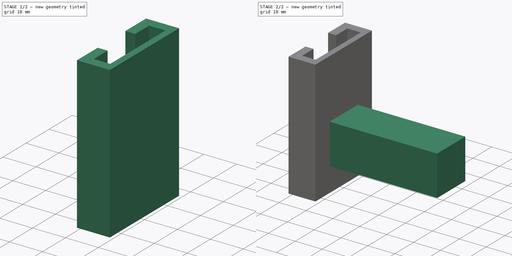
[diagram: build sequence overview — one tinted view per stage of 2, left to right]
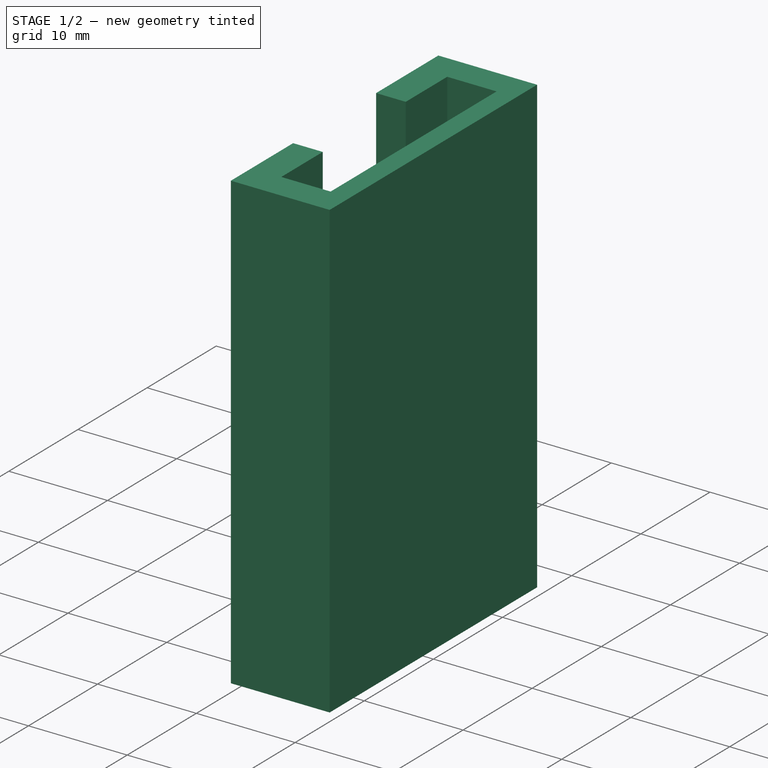
[diagram: stage 1 of 2 — iso view after this stage's code; geometry added in this stage tinted green]
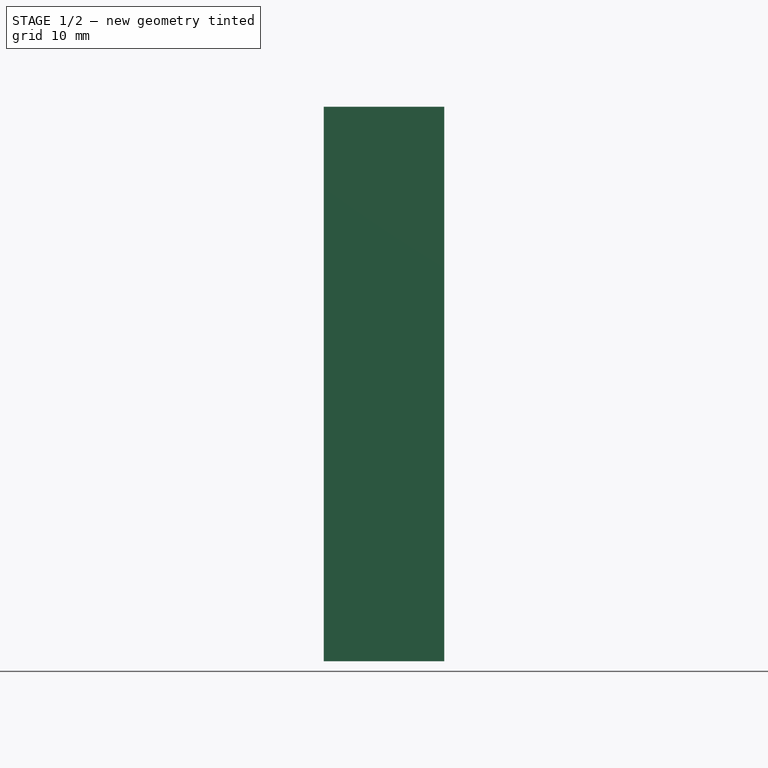
[diagram: stage 1 of 2 — front view after this stage's code; geometry added in this stage tinted green]
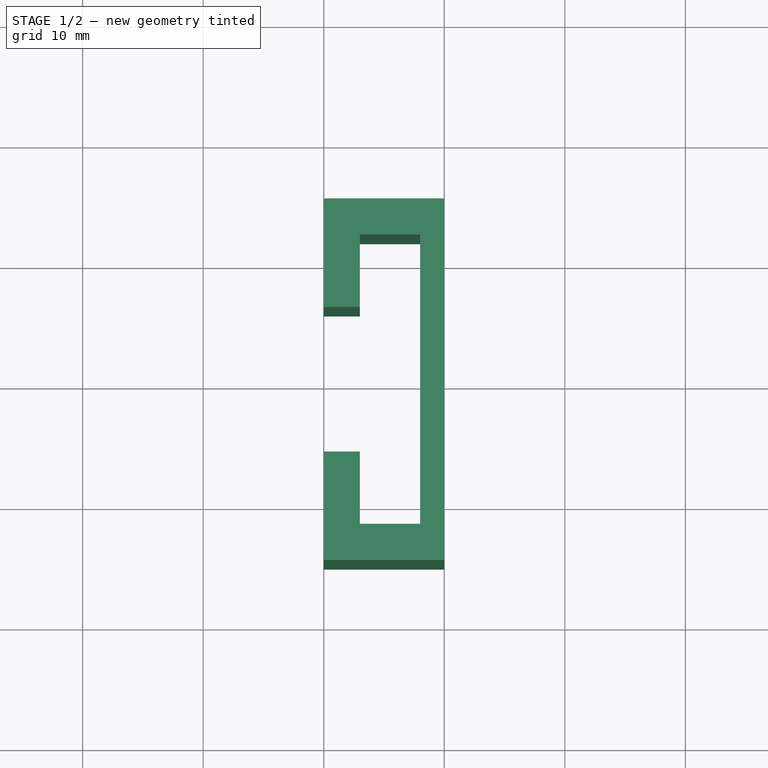
[diagram: stage 1 of 2 — top view after this stage's code; geometry added in this stage tinted green]
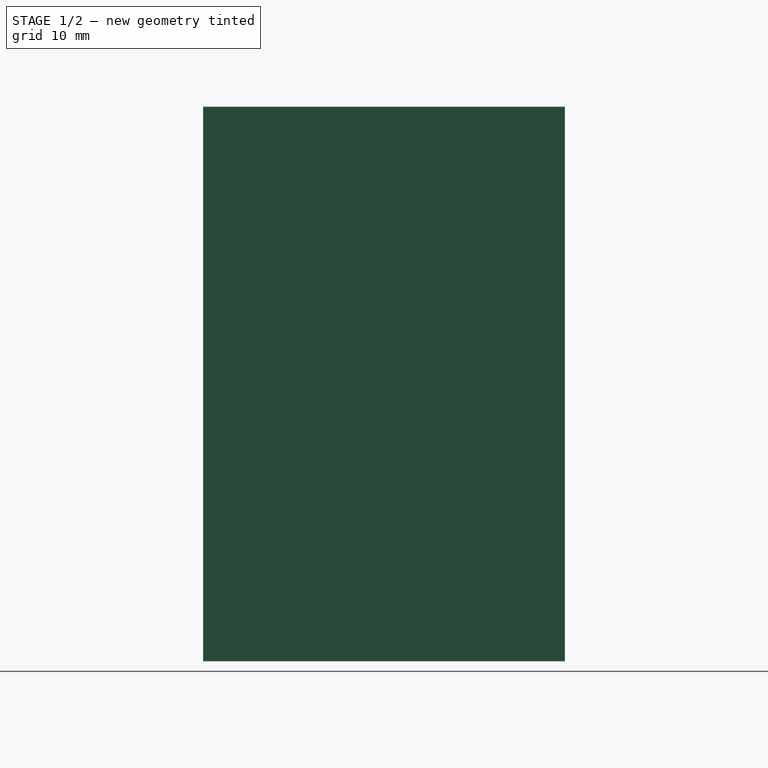
[diagram: stage 1 of 2 — right view after this stage's code; geometry added in this stage tinted green]
FCSTD DOCUMENT  (FreeCAD 0.18R16093 +53 (Git))
Label: CL_piece12_2
License: All rights reserved
LicenseURL: http://en.wikipedia.org/wiki/All_rights_reserved
objects: Sketcher::SketchObject×3, PartDesign::Pad×2, PartDesign::Body×1
note: 8 computed .brp shape members not serialized (recipe doc carries the construction recipe); baked Part::Feature solids carry a one-line shape summary decoded from their .brp

FEATURE [Sketcher::SketchObject] Sketch
  MapMode = 5
  Support = -> [XY_Plane]
  sketch-geometry (12):
    g0: LineSegment StartX=-10 StartY=15 StartZ=0 EndX=0 EndY=15 EndZ=0
    g1: LineSegment StartX=0 StartY=15 StartZ=0 EndX=0 EndY=-15 EndZ=0
    g2: LineSegment StartX=0 StartY=-15 StartZ=0 EndX=-10 EndY=-15 EndZ=0
    g3: LineSegment StartX=-10 StartY=-15 StartZ=0 EndX=-10 EndY=-6 EndZ=0
    g4: LineSegment StartX=-10 StartY=-6 StartZ=0 EndX=-7 EndY=-6 EndZ=0
    g5: LineSegment StartX=-7 StartY=-6 StartZ=0 EndX=-7 EndY=-12 EndZ=0
    g6: LineSegment StartX=-7 StartY=-12 StartZ=0 EndX=-2 EndY=-12 EndZ=0
    g7: LineSegment StartX=-2 StartY=-12 StartZ=0 EndX=-2 EndY=12 EndZ=0
    g8: LineSegment StartX=-2 StartY=12 StartZ=0 EndX=-7 EndY=12 EndZ=0
    g9: LineSegment StartX=-7 StartY=12 StartZ=0 EndX=-7 EndY=6 EndZ=0
    g10: LineSegment StartX=-7 StartY=6 StartZ=0 EndX=-10 EndY=6 EndZ=0
    g11: LineSegment StartX=-10 StartY=6 StartZ=0 EndX=-10 EndY=15 EndZ=0
  constraints (35):
    c: Coincident(g0,g1)
    c: Coincident(g1,g2)
    c: Coincident(g2,g3)
    c: Coincident(g3,g4)
    c: Coincident(g4,g5)
    c: Coincident(g5,g6)
    c: Coincident(g6,g7)
    c: Coincident(g7,g8)
    c: Coincident(g8,g9)
    c: Coincident(g9,g10)
    c: Coincident(g10,g11)
    c: Coincident(g11,g0)
    c: DistanceY(g1,g1) = 30
    c: Angle(g0,g1) = 1.5708
    c: Angle(g1,g2) = 1.5708
    c: DistanceX(g0,g0) = 10
    c: PointOnObject(g0,g-2)
    c: DistanceX(g2,g2) = 10
    c: DistanceX(g4,g4) = 3
    c: DistanceX(g10,g10) = 3
    c: DistanceX(g6,g6) = 5
    c: DistanceX(g8,g8) = 5
    c: Symmetric(g0,g1,g-1)
    c: DistanceY(g3,g3) = 9
    c: DistanceY(g11,g11) = 9
    c: DistanceY(g5,g5) = 6
    c: DistanceY(g9,g9) = 6
    c: Perpendicular(g3,g2)
    c: Perpendicular(g5,g6)
    c: Perpendicular(g11,g0)
    c: Parallel(g0,g8)
    c: Parallel(g2,g6)
    c: Parallel(g1,g7)
    c: Parallel(g2,g4)
    c: Parallel(g0,g10)
FEATURE [PartDesign::Pad] Pad
  Length = 46
  Length2 = 100
  Profile = -> Sketch
  Type = 0
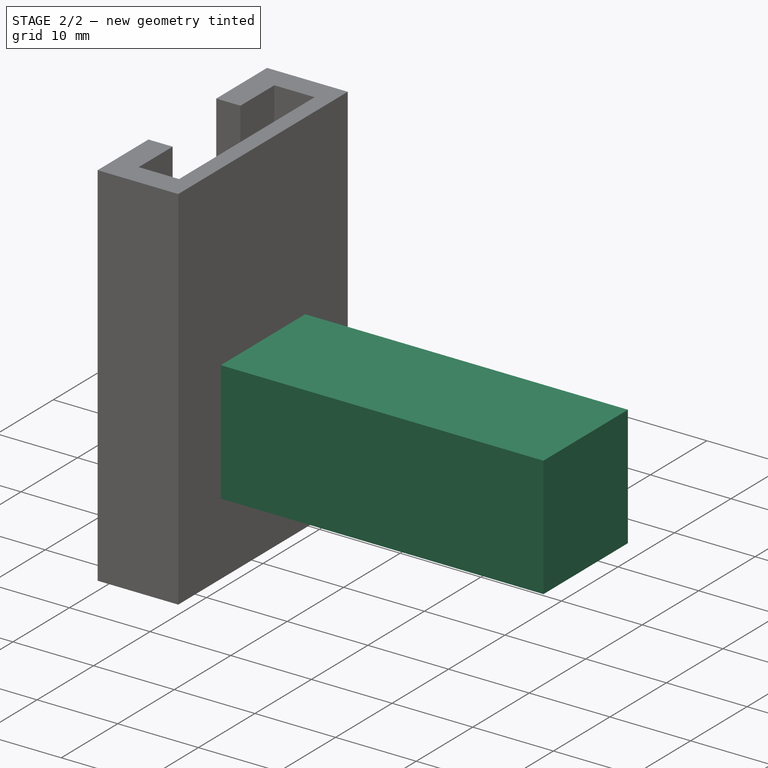
[diagram: stage 2 of 2 — iso view after this stage's code; geometry added in this stage tinted green]
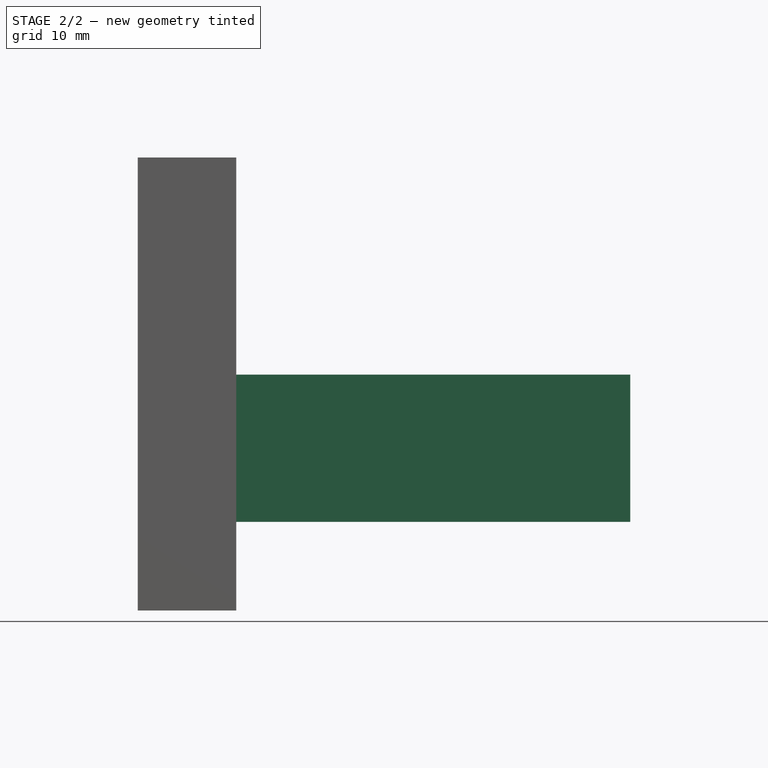
[diagram: stage 2 of 2 — front view after this stage's code; geometry added in this stage tinted green]
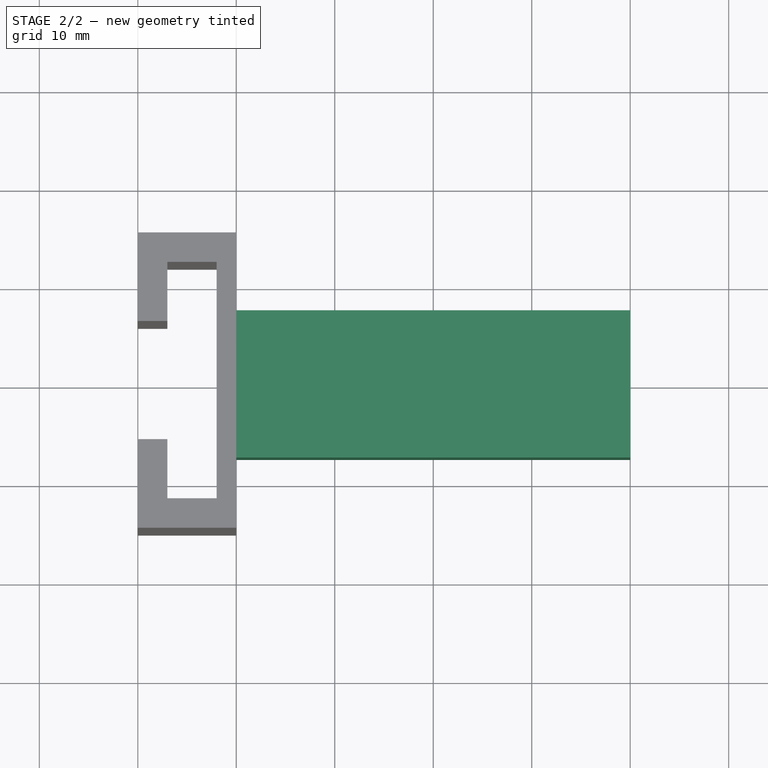
[diagram: stage 2 of 2 — top view after this stage's code; geometry added in this stage tinted green]
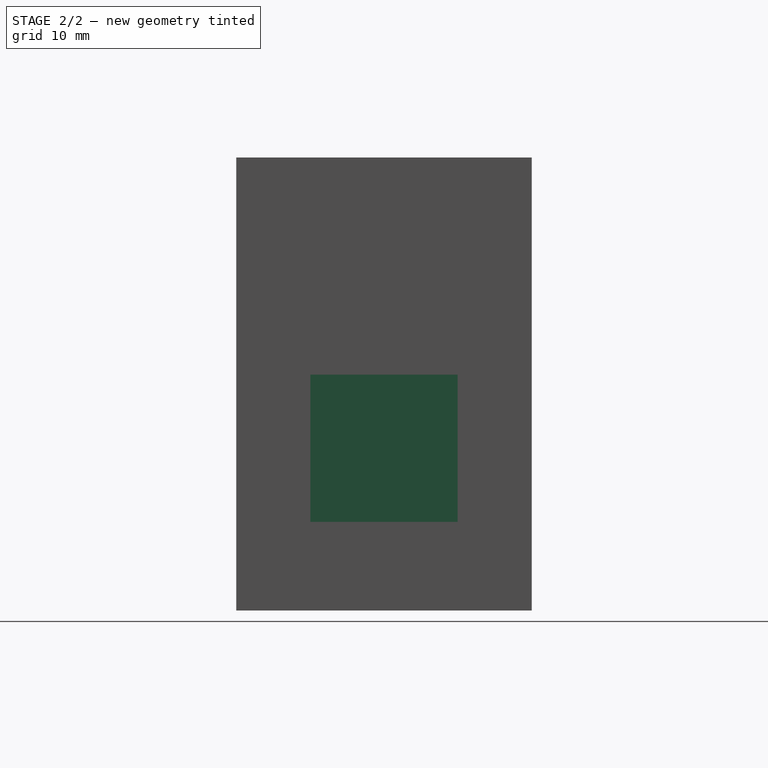
[diagram: stage 2 of 2 — right view after this stage's code; geometry added in this stage tinted green]
FEATURE [Sketcher::SketchObject] Sketch001
  MapMode = 5
  Placement = pos=(0,0,0) rot=(0.57735,0.57735,0.57735;2.0944rad)
  Support = -> [Pad]
FEATURE [Sketcher::SketchObject] Sketch002
  MapMode = 5
  Placement = pos=(0,0,0) rot=(0.57735,0.57735,0.57735;2.0944rad)
  Support = -> [Pad]
  sketch-geometry (4):
    g0: LineSegment StartX=-7.475 StartY=23.95 StartZ=0 EndX=7.475 EndY=23.95 EndZ=0
    g1: LineSegment StartX=7.475 StartY=23.95 StartZ=0 EndX=7.475 EndY=9 EndZ=0
    g2: LineSegment StartX=7.475 StartY=9 StartZ=0 EndX=-7.475 EndY=9 EndZ=0
    g3: LineSegment StartX=-7.475 StartY=9 StartZ=0 EndX=-7.475 EndY=23.95 EndZ=0
  constraints (11):
    c: Coincident(g0,g1)
    c: Coincident(g1,g2)
    c: Coincident(g2,g3)
    c: Coincident(g3,g0)
    c: Horizontal(g2)
    c: Vertical(g1)
    c: Vertical(g3)
    c: Distance(g0) = 14.95
    c: Distance(g1) = 14.95
    c: Symmetric(g0,g0,g-2)
    c: DistanceY(g-1,g1) = 9
FEATURE [PartDesign::Pad] Pad001
  BaseFeature = -> Pad
  Length = 40
  Length2 = 100
  Profile = -> Sketch002
  Type = 0
FEATURE [PartDesign::Body] Body
  Group = -> [Sketch,Pad,Sketch001,Sketch002,Pad001]
  Origin = -> Origin
  Tip = -> Pad001
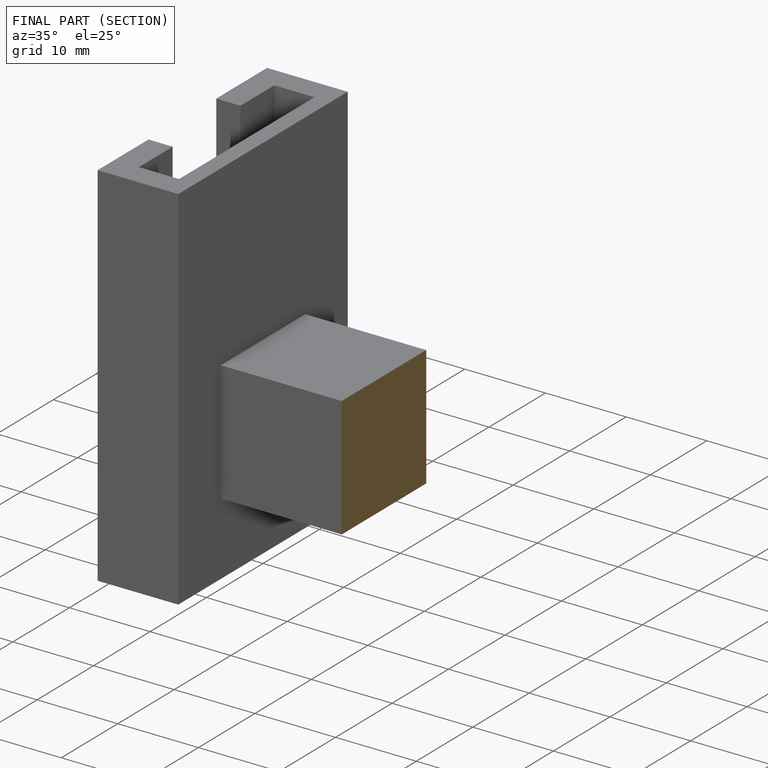
[diagram: finished part — half-section view (interior)]
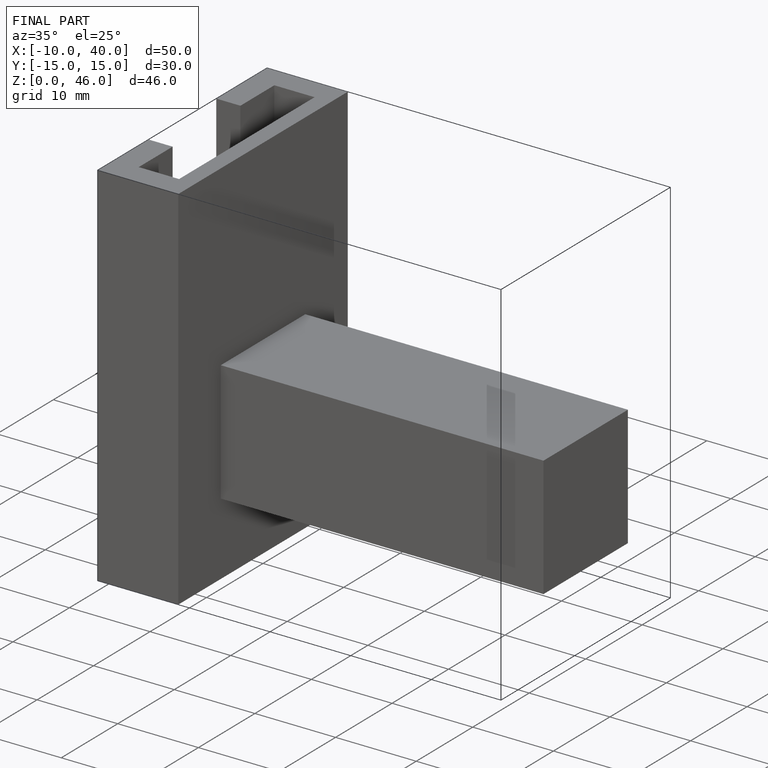
[diagram: finished part — iso view with bounding-box wireframe]
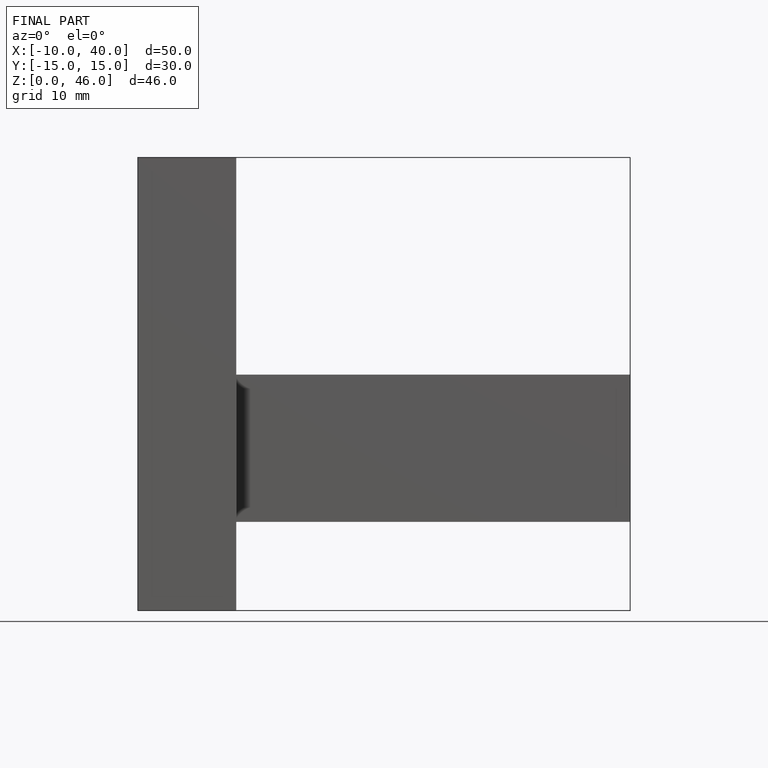
[diagram: finished part — front view with bounding-box wireframe]
